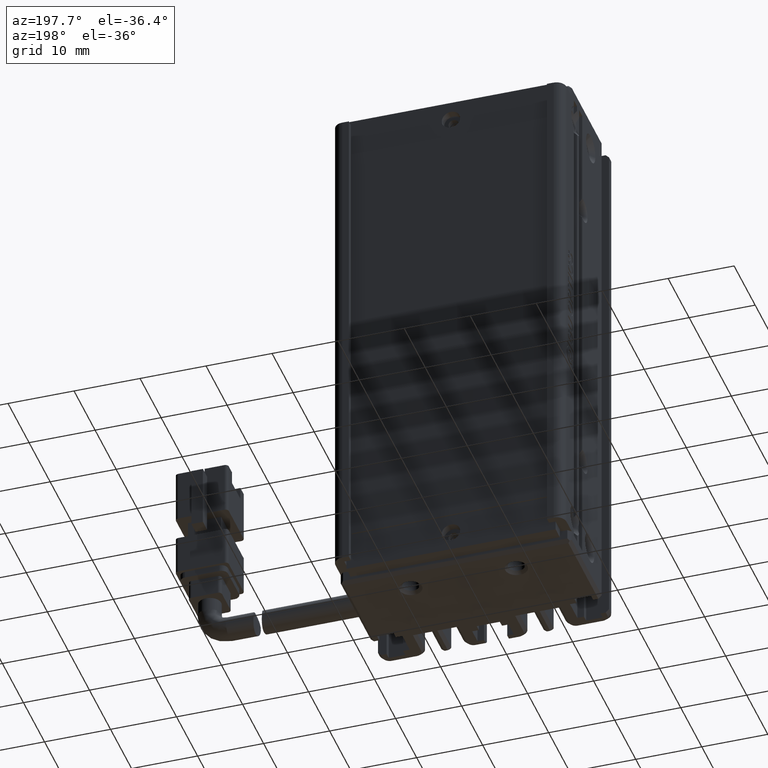
[diagram: clean part render]
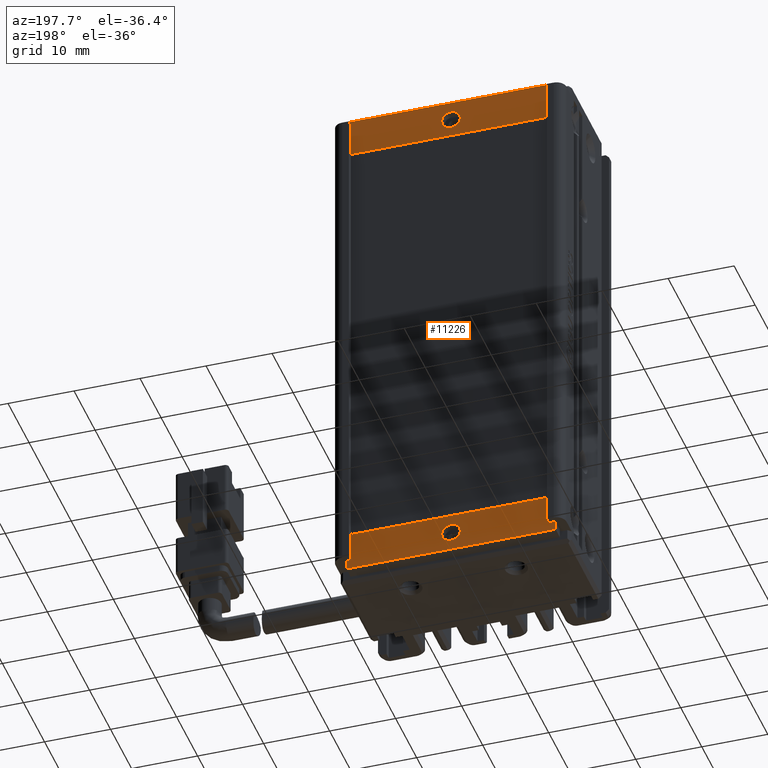
[diagram: same view with one face highlighted and labeled with its STEP entity id]
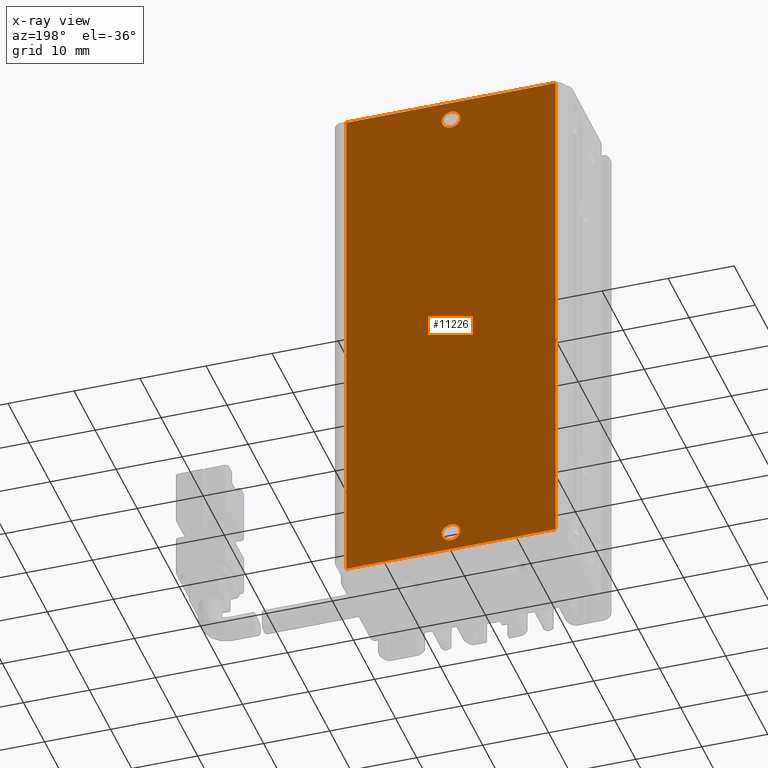
[diagram: x-ray of the same camera — body ghosted, the highlighted face saturated]
A machine part, auxiliary view. The second image highlights one B-rep face of the part: STEP entity #11226.
The next image is the same camera in x-ray: the body ghosted, the highlighted face saturated — about 0% of this face is hidden behind the body in this view.
In plain terms, the highlighted planar face has unit normal (0, 1, 0).
Its self-contained STEP definition (entity closure, byte-faithful):
#1239 = AXIS2_PLACEMENT_3D ( 'NONE', #2746, #4961, #7898 ) ;
#1740 = CIRCLE ( 'NONE', #11085, 1.400000000000012300 ) ;
#2746 = CARTESIAN_POINT ( 'NONE',  ( 56.77537974683541200, 33.49073232304837700, -75.00000000000001400 ) ) ;
#2944 = EDGE_CURVE ( 'NONE', #4698, #16004, #15485, .T. ) ;
#4398 = CARTESIAN_POINT ( 'NONE',  ( 56.77537974683541200, 33.49073232304837700, -75.00000000000001400 ) ) ;
#4631 = DIRECTION ( 'NONE',  ( 0.0000000000000000000, 0.0000000000000000000, 1.000000000000000000 ) ) ;
#4698 = VERTEX_POINT ( 'NONE', #36970 ) ;
#4961 = DIRECTION ( 'NONE',  ( 0.0000000000000000000, 1.000000000000000000, 0.0000000000000000000 ) ) ;
#4983 = DIRECTION ( 'NONE',  ( -0.0000000000000000000, -1.000000000000000000, -0.0000000000000000000 ) ) ;
#6025 = DIRECTION ( 'NONE',  ( -1.631319816340922500E-017, -0.0000000000000000000, 1.000000000000000000 ) ) ;
#6163 = CARTESIAN_POINT ( 'NONE',  ( 25.07537974683541600, 33.49073232304837700, -75.00000000000001400 ) ) ;
#6461 = DIRECTION ( 'NONE',  ( 1.000000000000000000, 0.0000000000000000000, 1.387778780781445400E-016 ) ) ;
#6867 = VERTEX_POINT ( 'NONE', #9992 ) ;
#7626 = CIRCLE ( 'NONE', #29677, 1.399999999999998600 ) ;
#7898 = DIRECTION ( 'NONE',  ( -1.387778780781445400E-016, 0.0000000000000000000, 1.000000000000000000 ) ) ;
#8248 = ORIENTED_EDGE ( 'NONE', *, *, #22479, .T. ) ;
#9909 = CARTESIAN_POINT ( 'NONE',  ( 25.07537974683541600, 33.49073232304837700, -155.0000000000000300 ) ) ;
#9992 = CARTESIAN_POINT ( 'NONE',  ( 40.92537974683541800, 33.49073232304837700, -150.6000000000000200 ) ) ;
#10290 = CARTESIAN_POINT ( 'NONE',  ( 40.92537974683541100, 33.49073232304837700, -78.00000000000001400 ) ) ;
#10405 = DIRECTION ( 'NONE',  ( 0.0000000000000000000, 0.0000000000000000000, 1.000000000000000000 ) ) ;
#10450 = DIRECTION ( 'NONE',  ( -0.0000000000000000000, -1.000000000000000000, -0.0000000000000000000 ) ) ;
#10766 = CARTESIAN_POINT ( 'NONE',  ( 25.07537974683541600, 33.49073232304837700, -155.0000000000000300 ) ) ;
#11051 = LINE ( 'NONE', #23591, #12427 ) ;
#11085 = AXIS2_PLACEMENT_3D ( 'NONE', #31609, #25875, #17118 ) ;
#11226 = ADVANCED_FACE ( 'NONE', ( #37193, #32126, #27157 ), #31969, .T. ) ;
#11289 = AXIS2_PLACEMENT_3D ( 'NONE', #23698, #11428, #23313 ) ;
#11428 = DIRECTION ( 'NONE',  ( -0.0000000000000000000, -1.000000000000000000, -0.0000000000000000000 ) ) ;
#12192 = CARTESIAN_POINT ( 'NONE',  ( 40.92537974683541100, 33.49073232304837700, -76.60000000000000900 ) ) ;
#12307 = VECTOR ( 'NONE', #18765, 1000.000000000000000 ) ;
#12427 = VECTOR ( 'NONE', #29834, 1000.000000000000000 ) ;
#12690 = VERTEX_POINT ( 'NONE', #31037 ) ;
#13308 = CIRCLE ( 'NONE', #11289, 1.399999999999998600 ) ;
#14647 = VERTEX_POINT ( 'NONE', #19647 ) ;
#15109 = ORIENTED_EDGE ( 'NONE', *, *, #18216, .T. ) ;
#15485 = LINE ( 'NONE', #17845, #23331 ) ;
#15945 = EDGE_LOOP ( 'NONE', ( #8248, #15109, #21006, #22465 ) ) ;
#16004 = VERTEX_POINT ( 'NONE', #4398 ) ;
#17118 = DIRECTION ( 'NONE',  ( 0.0000000000000000000, 0.0000000000000000000, 1.000000000000000000 ) ) ;
#17324 = EDGE_LOOP ( 'NONE', ( #31883, #20391 ) ) ;
#17845 = CARTESIAN_POINT ( 'NONE',  ( 25.07537974683541600, 33.49073232304837700, -75.00000000000001400 ) ) ;
#18216 = EDGE_CURVE ( 'NONE', #36029, #4698, #20110, .T. ) ;
#18765 = DIRECTION ( 'NONE',  ( -1.000000000000000000, -0.0000000000000000000, -1.387778780781445400E-016 ) ) ;
#18799 = ORIENTED_EDGE ( 'NONE', *, *, #25905, .T. ) ;
#19214 = ORIENTED_EDGE ( 'NONE', *, *, #28547, .T. ) ;
#19647 = CARTESIAN_POINT ( 'NONE',  ( 56.77537974683541900, 33.49073232304837700, -155.0000000000000300 ) ) ;
#19657 = EDGE_CURVE ( 'NONE', #12690, #6867, #27317, .T. ) ;
#19942 = VERTEX_POINT ( 'NONE', #30895 ) ;
#20110 = LINE ( 'NONE', #6163, #32942 ) ;
#20391 = ORIENTED_EDGE ( 'NONE', *, *, #19657, .T. ) ;
#20758 = VERTEX_POINT ( 'NONE', #12192 ) ;
#21006 = ORIENTED_EDGE ( 'NONE', *, *, #2944, .T. ) ;
#21563 = AXIS2_PLACEMENT_3D ( 'NONE', #28358, #10450, #4631 ) ;
#21645 = EDGE_LOOP ( 'NONE', ( #19214, #18799 ) ) ;
#22465 = ORIENTED_EDGE ( 'NONE', *, *, #36841, .T. ) ;
#22479 = EDGE_CURVE ( 'NONE', #14647, #36029, #27986, .T. ) ;
#23313 = DIRECTION ( 'NONE',  ( 0.0000000000000000000, 0.0000000000000000000, 1.000000000000000000 ) ) ;
#23331 = VECTOR ( 'NONE', #6461, 1000.000000000000000 ) ;
#23591 = CARTESIAN_POINT ( 'NONE',  ( 56.77537974683541200, 33.49073232304837700, -75.00000000000001400 ) ) ;
#23698 = CARTESIAN_POINT ( 'NONE',  ( 40.92537974683541100, 33.49073232304837700, -78.00000000000001400 ) ) ;
#25875 = DIRECTION ( 'NONE',  ( -0.0000000000000000000, -1.000000000000000000, -0.0000000000000000000 ) ) ;
#25905 = EDGE_CURVE ( 'NONE', #19942, #20758, #7626, .T. ) ;
#27157 = FACE_BOUND ( 'NONE', #17324, .T. ) ;
#27317 = CIRCLE ( 'NONE', #21563, 1.400000000000012300 ) ;
#27986 = LINE ( 'NONE', #9909, #12307 ) ;
#28358 = CARTESIAN_POINT ( 'NONE',  ( 40.92537974683541800, 33.49073232304837700, -152.0000000000000300 ) ) ;
#28547 = EDGE_CURVE ( 'NONE', #20758, #19942, #13308, .T. ) ;
#29677 = AXIS2_PLACEMENT_3D ( 'NONE', #10290, #4983, #10405 ) ;
#29834 = DIRECTION ( 'NONE',  ( 5.204170427930418800E-017, -0.0000000000000000000, -1.000000000000000000 ) ) ;
#30895 = CARTESIAN_POINT ( 'NONE',  ( 40.92537974683541100, 33.49073232304837700, -79.40000000000000600 ) ) ;
#31037 = CARTESIAN_POINT ( 'NONE',  ( 40.92537974683541800, 33.49073232304837700, -153.4000000000000300 ) ) ;
#31609 = CARTESIAN_POINT ( 'NONE',  ( 40.92537974683541800, 33.49073232304837700, -152.0000000000000300 ) ) ;
#31883 = ORIENTED_EDGE ( 'NONE', *, *, #32642, .T. ) ;
#31969 = PLANE ( 'NONE',  #1239 ) ;
#32126 = FACE_BOUND ( 'NONE', #21645, .T. ) ;
#32642 = EDGE_CURVE ( 'NONE', #6867, #12690, #1740, .T. ) ;
#32942 = VECTOR ( 'NONE', #6025, 1000.000000000000000 ) ;
#36029 = VERTEX_POINT ( 'NONE', #10766 ) ;
#36841 = EDGE_CURVE ( 'NONE', #16004, #14647, #11051, .T. ) ;
#36970 = CARTESIAN_POINT ( 'NONE',  ( 25.07537974683541600, 33.49073232304837700, -75.00000000000001400 ) ) ;
#37193 = FACE_OUTER_BOUND ( 'NONE', #15945, .T. ) ;